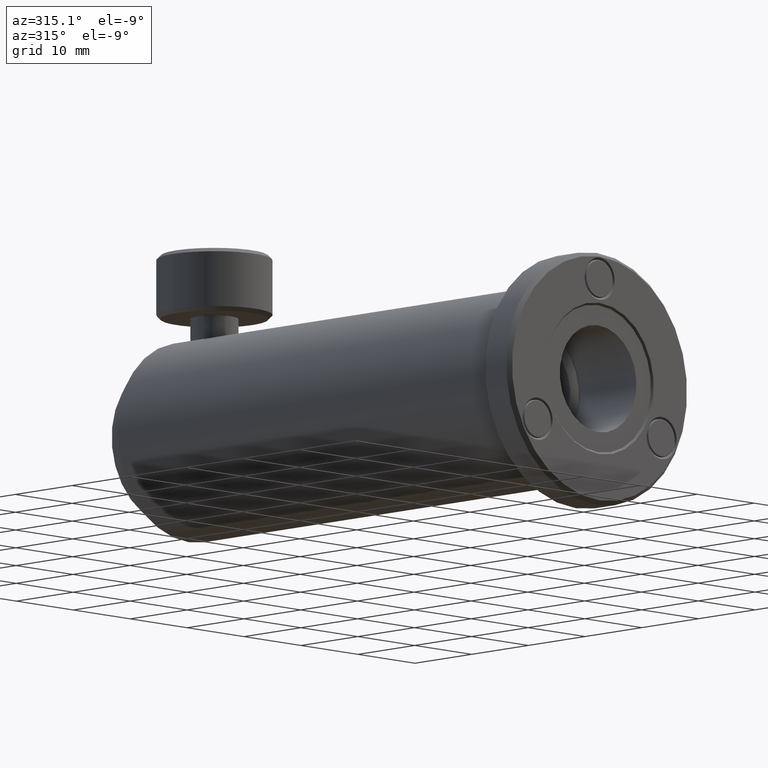
[diagram: clean part render]
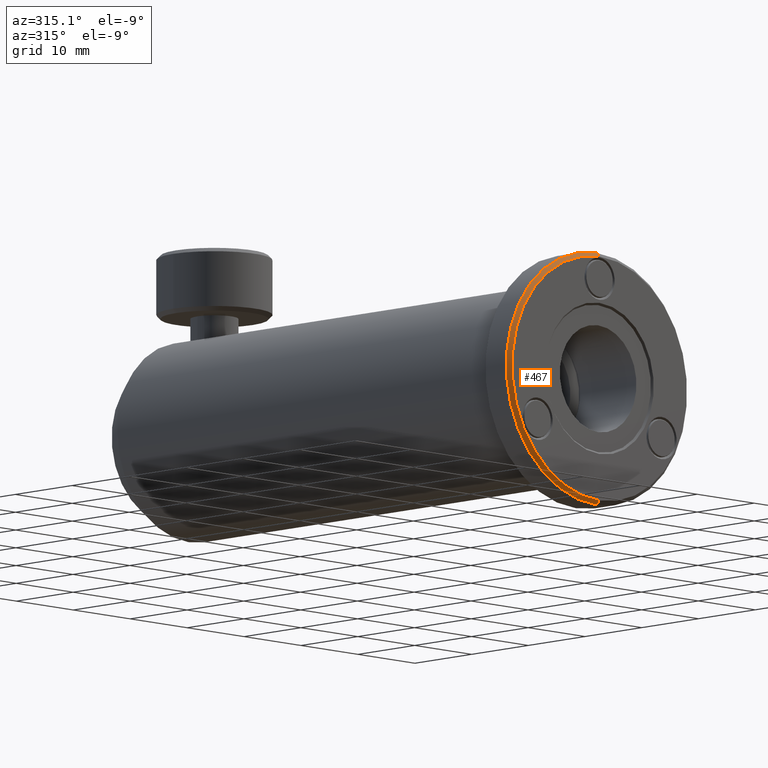
[diagram: same view with one face highlighted and labeled with its STEP entity id]
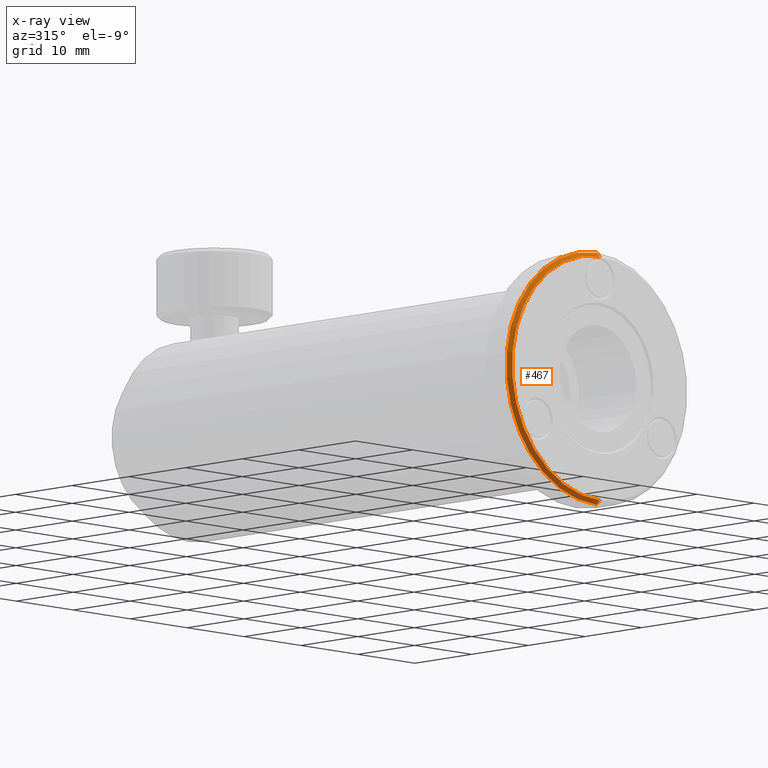
[diagram: x-ray of the same camera — body ghosted, the highlighted face saturated]
A machine part, auxiliary view. The second image highlights one B-rep face of the part: STEP entity #467.
The next image is the same camera in x-ray: the body ghosted, the highlighted face saturated — about 0% of this face is hidden behind the body in this view.
In plain terms, the highlighted conical surface has half-angle 45 deg.
Its self-contained STEP definition (entity closure, byte-faithful):
#112 = AXIS2_PLACEMENT_3D ( 'NONE', #2316, #3411, #1187 ) ;
#150 = EDGE_CURVE ( 'NONE', #1049, #525, #3109, .T. ) ;
#156 = CARTESIAN_POINT ( 'NONE',  ( -16.77690416192944800, -19.54783156452665300, -3.521036400955010600 ) ) ;
#229 = ORIENTED_EDGE ( 'NONE', *, *, #3089, .T. ) ;
#269 = ORIENTED_EDGE ( 'NONE', *, *, #1232, .F. ) ;
#464 = VECTOR ( 'NONE', #3466, 1000.000000000000100 ) ;
#467 = ADVANCED_FACE ( 'NONE', ( #814 ), #2510, .T. ) ;
#496 = ORIENTED_EDGE ( 'NONE', *, *, #1671, .T. ) ;
#502 = AXIS2_PLACEMENT_3D ( 'NONE', #1085, #558, #3049 ) ;
#525 = VERTEX_POINT ( 'NONE', #156 ) ;
#558 = DIRECTION ( 'NONE',  ( -0.0000000000000000000, -1.000000000000000000, -0.0000000000000000000 ) ) ;
#682 = CARTESIAN_POINT ( 'NONE',  ( -16.77690416192944800, -19.54783156452665300, -3.521036400955010600 ) ) ;
#774 = DIRECTION ( 'NONE',  ( 0.0000000000000000000, 0.0000000000000000000, -1.000000000000000000 ) ) ;
#780 = VERTEX_POINT ( 'NONE', #1634 ) ;
#814 = FACE_OUTER_BOUND ( 'NONE', #2151, .T. ) ;
#892 = AXIS2_PLACEMENT_3D ( 'NONE', #2738, #1615, #774 ) ;
#1049 = VERTEX_POINT ( 'NONE', #3366 ) ;
#1085 = CARTESIAN_POINT ( 'NONE',  ( -16.77690416192945100, -19.03983156452665400, 11.84596359904499100 ) ) ;
#1124 = VERTEX_POINT ( 'NONE', #1973 ) ;
#1187 = DIRECTION ( 'NONE',  ( 0.0000000000000000000, 0.0000000000000000000, 1.000000000000000000 ) ) ;
#1232 = EDGE_CURVE ( 'NONE', #525, #780, #2691, .T. ) ;
#1615 = DIRECTION ( 'NONE',  ( -0.0000000000000000000, -1.000000000000000000, -0.0000000000000000000 ) ) ;
#1634 = CARTESIAN_POINT ( 'NONE',  ( -16.77690416192945100, -19.03983156452665400, -4.029036400955006600 ) ) ;
#1671 = EDGE_CURVE ( 'NONE', #1124, #780, #2719, .T. ) ;
#1973 = CARTESIAN_POINT ( 'NONE',  ( -16.77690416192944800, -19.03983156452665400, 27.72096359904498900 ) ) ;
#1980 = CARTESIAN_POINT ( 'NONE',  ( -16.77690416192945100, -19.54783156452665300, 27.21296359904499000 ) ) ;
#2151 = EDGE_LOOP ( 'NONE', ( #269, #2585, #229, #496 ) ) ;
#2316 = CARTESIAN_POINT ( 'NONE',  ( -16.77690416192945100, -19.54783156452665300, 11.84596359904499100 ) ) ;
#2510 = CONICAL_SURFACE ( 'NONE', #112, 15.36700000000000100, 0.7853981633974449500 ) ;
#2585 = ORIENTED_EDGE ( 'NONE', *, *, #150, .F. ) ;
#2691 = LINE ( 'NONE', #682, #464 ) ;
#2719 = CIRCLE ( 'NONE', #502, 15.87499999999999600 ) ;
#2738 = CARTESIAN_POINT ( 'NONE',  ( -16.77690416192945100, -19.54783156452665300, 11.84596359904499100 ) ) ;
#2760 = LINE ( 'NONE', #1980, #2852 ) ;
#2852 = VECTOR ( 'NONE', #3069, 1000.000000000000100 ) ;
#3049 = DIRECTION ( 'NONE',  ( 0.0000000000000000000, 0.0000000000000000000, -1.000000000000000000 ) ) ;
#3069 = DIRECTION ( 'NONE',  ( 0.0000000000000000000, 0.7071067811865499000, 0.7071067811865451300 ) ) ;
#3089 = EDGE_CURVE ( 'NONE', #1049, #1124, #2760, .T. ) ;
#3109 = CIRCLE ( 'NONE', #892, 15.36700000000000100 ) ;
#3366 = CARTESIAN_POINT ( 'NONE',  ( -16.77690416192945100, -19.54783156452665300, 27.21296359904499000 ) ) ;
#3411 = DIRECTION ( 'NONE',  ( 0.0000000000000000000, 1.000000000000000000, 0.0000000000000000000 ) ) ;
#3466 = DIRECTION ( 'NONE',  ( 8.659560562354903300E-017, 0.7071067811865499000, -0.7071067811865451300 ) ) ;